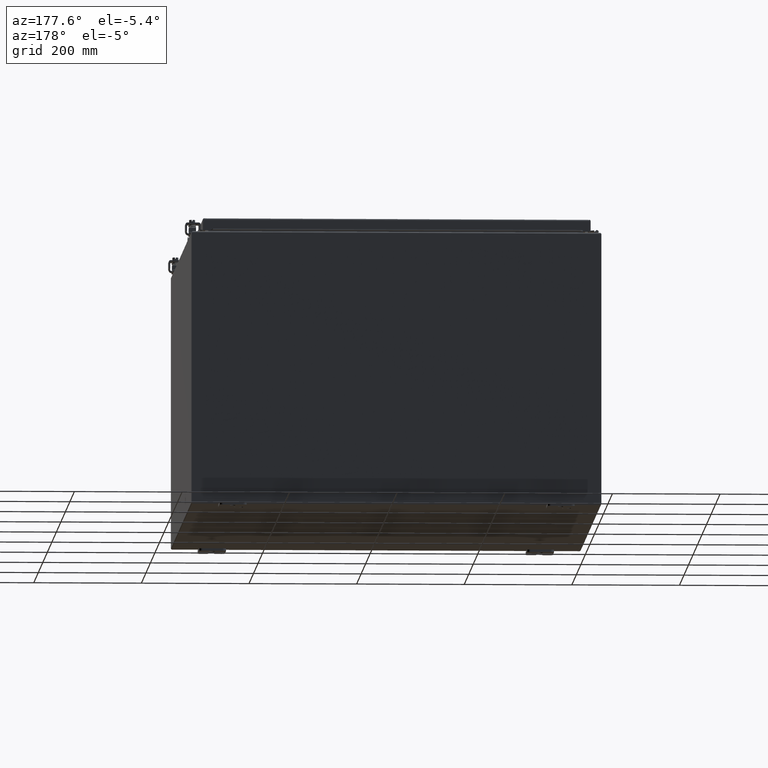
[diagram: clean part render]
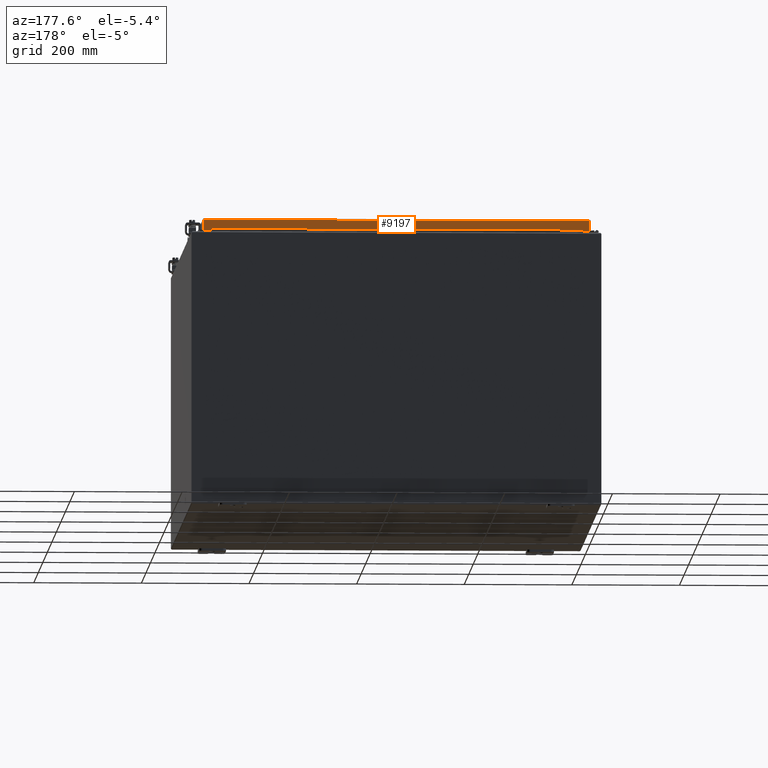
[diagram: same view with one face highlighted and labeled with its STEP entity id]
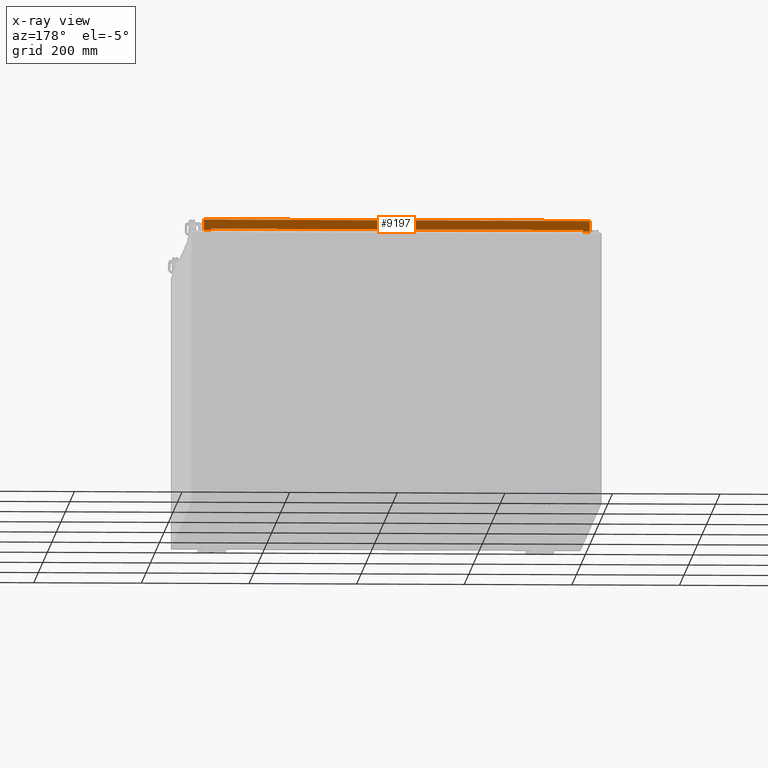
[diagram: x-ray of the same camera — body ghosted, the highlighted face saturated]
A machine part, auxiliary view. The second image highlights one B-rep face of the part: STEP entity #9197.
The next image is the same camera in x-ray: the body ghosted, the highlighted face saturated — about 0% of this face is hidden behind the body in this view.
In plain terms, the highlighted planar face has unit normal (0, -1, 0).
Its self-contained STEP definition (entity closure, byte-faithful):
#8814=CARTESIAN_POINT('',(13.602451456543962,-17.093750000000043,0.769749999999993));
#8815=VERTEX_POINT('',#8814);
#8840=CARTESIAN_POINT('',(-13.602451456543982,-17.093750000000043,0.76974999999999));
#8841=VERTEX_POINT('',#8840);
#8896=CARTESIAN_POINT('',(13.60245145654396,-17.093750000000043,0.769749999999993));
#8897=DIRECTION('',(-1.0,0.0,0.0));
#8898=VECTOR('',#8897,27.204902913087942);
#8899=LINE('',#8896,#8898);
#8900=EDGE_CURVE('',#8815,#8841,#8899,.T.);
#8920=CARTESIAN_POINT('',(-13.602451456543982,-17.093750000000043,0.76954999999999));
#8921=VERTEX_POINT('',#8920);
#8928=CARTESIAN_POINT('',(-13.602451456543982,-17.093750000000043,0.76974999999999));
#8929=DIRECTION('',(0.0,0.0,-1.0));
#8930=VECTOR('',#8929,0.0002);
#8931=LINE('',#8928,#8930);
#8932=EDGE_CURVE('',#8841,#8921,#8931,.T.);
#8952=CARTESIAN_POINT('',(-13.602651456543983,-17.093750000000046,0.87499999999999));
#8953=VERTEX_POINT('',#8952);
#8960=CARTESIAN_POINT('',(-13.602651456543983,-17.093750000000043,0.76954999999999));
#8961=VERTEX_POINT('',#8960);
#8962=CARTESIAN_POINT('',(-13.602651456543983,-17.093750000000043,0.76954999999999));
#8963=DIRECTION('',(0.0,0.0,1.0));
#8964=VECTOR('',#8963,0.10545);
#8965=LINE('',#8962,#8964);
#8966=EDGE_CURVE('',#8961,#8953,#8965,.T.);
#8989=CARTESIAN_POINT('',(-13.602451456543982,-17.093750000000043,0.76954999999999));
#8990=DIRECTION('',(-1.0,0.0,0.0));
#8991=VECTOR('',#8990,0.000200000000001);
#8992=LINE('',#8989,#8991);
#8993=EDGE_CURVE('',#8921,#8961,#8992,.T.);
#9079=CARTESIAN_POINT('',(13.602651456543963,-17.093750000000043,0.769549999999993));
#9080=VERTEX_POINT('',#9079);
#9087=CARTESIAN_POINT('',(13.602651456543963,-17.093750000000046,0.874999999999993));
#9088=VERTEX_POINT('',#9087);
#9089=CARTESIAN_POINT('',(13.602651456543963,-17.09375000000005,0.874999999999993));
#9090=DIRECTION('',(0.0,0.0,-1.0));
#9091=VECTOR('',#9090,0.10545);
#9092=LINE('',#9089,#9091);
#9093=EDGE_CURVE('',#9088,#9080,#9092,.T.);
#9110=CARTESIAN_POINT('',(13.602451456543962,-17.093750000000043,0.769549999999993));
#9111=VERTEX_POINT('',#9110);
#9112=CARTESIAN_POINT('',(13.602451456543962,-17.093750000000039,0.769549999999993));
#9113=DIRECTION('',(0.0,0.0,1.0));
#9114=VECTOR('',#9113,0.0002);
#9115=LINE('',#9112,#9114);
#9116=EDGE_CURVE('',#9111,#8815,#9115,.T.);
#9135=CARTESIAN_POINT('',(13.602651456543963,-17.093750000000043,0.769549999999993));
#9136=DIRECTION('',(-1.0,0.0,0.0));
#9137=VECTOR('',#9136,0.000200000000001);
#9138=LINE('',#9135,#9137);
#9139=EDGE_CURVE('',#9080,#9111,#9138,.T.);
#9145=CARTESIAN_POINT('',(-0.046950708161296,-17.093750000000021,0.440146161915871));
#9146=DIRECTION('',(0.0,1.0,0.0));
#9147=DIRECTION('',(1.0,0.0,0.0));
#9148=AXIS2_PLACEMENT_3D('',#9145,#9146,#9147);
#9149=PLANE('',#9148);
#9150=ORIENTED_EDGE('',*,*,#8966,.T.);
#9151=CARTESIAN_POINT('',(-14.102451456543982,-17.093750000000046,0.87499999999999));
#9152=VERTEX_POINT('',#9151);
#9153=CARTESIAN_POINT('',(-14.102451456543982,-17.093750000000046,0.87499999999999));
#9154=DIRECTION('',(1.0,0.0,0.0));
#9155=VECTOR('',#9154,0.4998);
#9156=LINE('',#9153,#9155);
#9157=EDGE_CURVE('',#9152,#8953,#9156,.T.);
#9158=ORIENTED_EDGE('',*,*,#9157,.F.);
#9159=CARTESIAN_POINT('',(-14.10245145654396,-17.093749999999996,0.105249999999994));
#9160=VERTEX_POINT('',#9159);
#9161=CARTESIAN_POINT('',(-14.102451456543958,-17.093750000000004,0.105249999999994));
#9162=DIRECTION('',(0.0,0.0,1.0));
#9163=VECTOR('',#9162,0.769749999999996);
#9164=LINE('',#9161,#9163);
#9165=EDGE_CURVE('',#9160,#9152,#9164,.T.);
#9166=ORIENTED_EDGE('',*,*,#9165,.F.);
#9167=CARTESIAN_POINT('',(14.102451456543962,-17.09375,0.105249999999996));
#9168=VERTEX_POINT('',#9167);
#9169=CARTESIAN_POINT('',(-14.102451456543958,-17.09375,0.105249999999993));
#9170=DIRECTION('',(1.0,0.0,0.0));
#9171=VECTOR('',#9170,28.204902913087921);
#9172=LINE('',#9169,#9171);
#9173=EDGE_CURVE('',#9160,#9168,#9172,.T.);
#9174=ORIENTED_EDGE('',*,*,#9173,.T.);
#9175=CARTESIAN_POINT('',(14.102451456543962,-17.093750000000046,0.874999999999993));
#9176=VERTEX_POINT('',#9175);
#9177=CARTESIAN_POINT('',(14.102451456543962,-17.093750000000043,0.874999999999993));
#9178=DIRECTION('',(0.0,0.0,-1.0));
#9179=VECTOR('',#9178,0.769749999999997);
#9180=LINE('',#9177,#9179);
#9181=EDGE_CURVE('',#9176,#9168,#9180,.T.);
#9182=ORIENTED_EDGE('',*,*,#9181,.F.);
#9183=CARTESIAN_POINT('',(13.602651456543965,-17.093750000000043,0.874999999999993));
#9184=DIRECTION('',(1.0,0.0,0.0));
#9185=VECTOR('',#9184,0.499799999999997);
#9186=LINE('',#9183,#9185);
#9187=EDGE_CURVE('',#9088,#9176,#9186,.T.);
#9188=ORIENTED_EDGE('',*,*,#9187,.F.);
#9189=ORIENTED_EDGE('',*,*,#9093,.T.);
#9190=ORIENTED_EDGE('',*,*,#9139,.T.);
#9191=ORIENTED_EDGE('',*,*,#9116,.T.);
#9192=ORIENTED_EDGE('',*,*,#8900,.T.);
#9193=ORIENTED_EDGE('',*,*,#8932,.T.);
#9194=ORIENTED_EDGE('',*,*,#8993,.T.);
#9195=EDGE_LOOP('',(#9150,#9158,#9166,#9174,#9182,#9188,#9189,#9190,#9191,#9192,#9193,#9194));
#9196=FACE_OUTER_BOUND('',#9195,.T.);
#9197=ADVANCED_FACE('',(#9196),#9149,.F.);